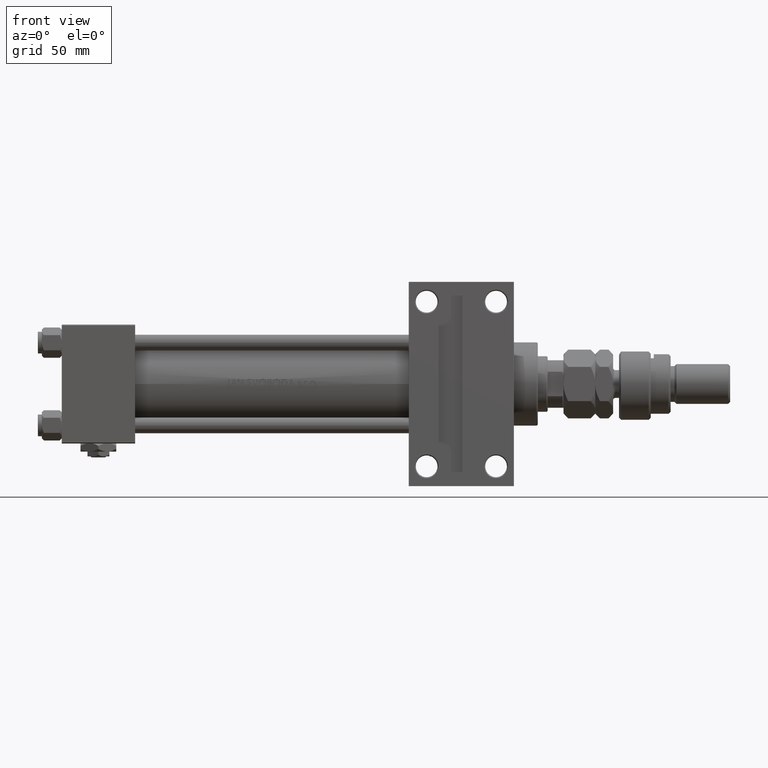
[diagram: clean part render]
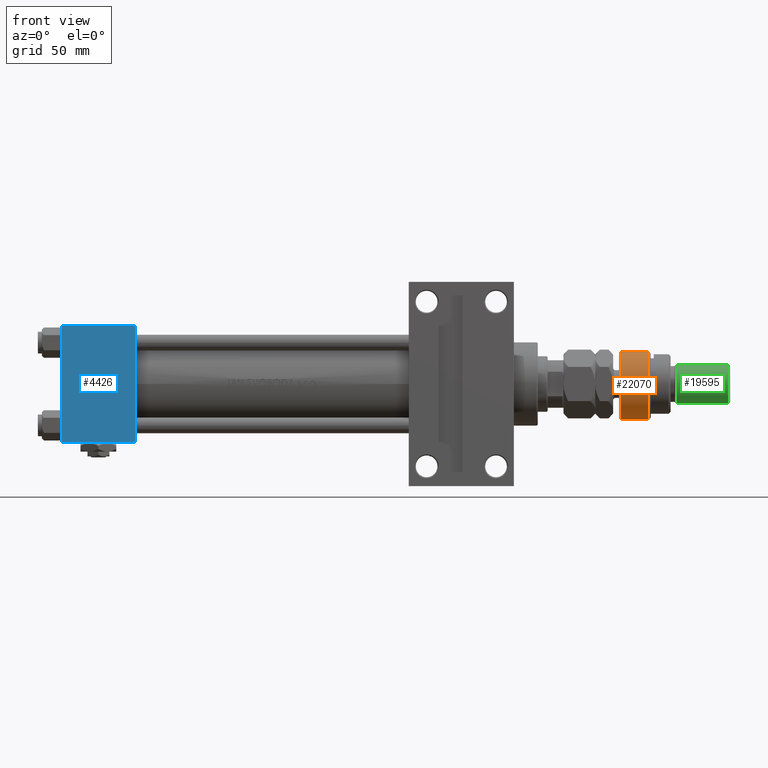
[diagram: same view with three faces highlighted in distinct colors, each labeled with its STEP entity id]
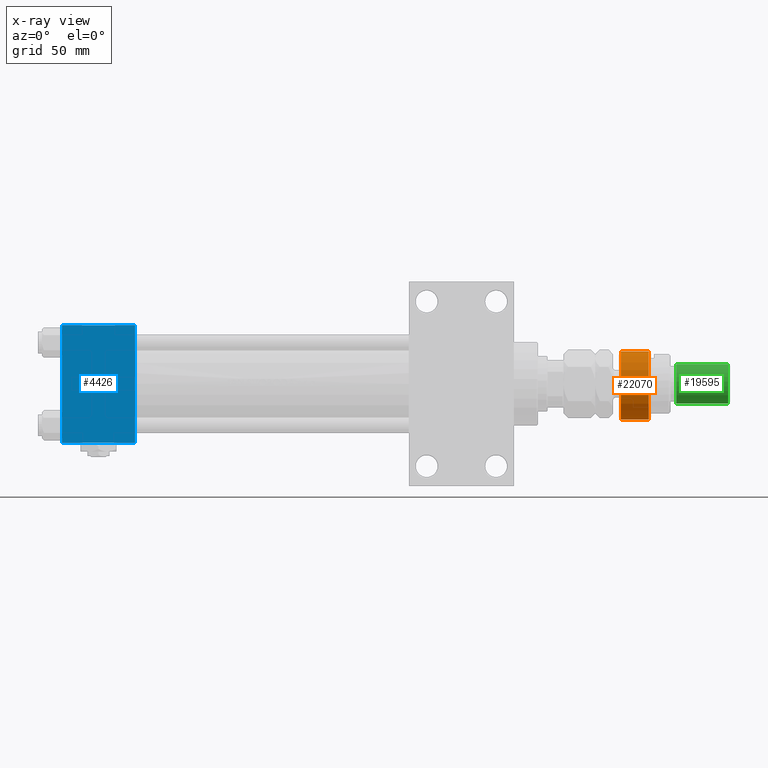
[diagram: x-ray of the same camera — body ghosted, the three highlighted faces saturated]
A machine part, front view with three faces highlighted in distinct colors.
The next image is the same camera in x-ray (body ghosted, the three faces saturated) — at least one of them is partly hidden behind the body in this view.
Their STEP definitions:

[orange] entity #22070 — the highlighted cylindrical surface (edge-blend (fillet) strip) has radius 18 mm, axis along (-1, -0, 0).
#254 = CARTESIAN_POINT ( 'NONE',  ( 0.000000000000000000, 0.000000000000000000, 1.000000000000011324 ) ) ;
#1689 = CARTESIAN_POINT ( 'NONE',  ( -16.36306817195357155, -7.500000000000000000, 14.99999999999999645 ) ) ;
#1696 = VERTEX_POINT ( 'NONE', #31382 ) ;
#2452 = FACE_OUTER_BOUND ( 'NONE', #17109, .T. ) ;
#4323 = CARTESIAN_POINT ( 'NONE',  ( 0.000000000000000000, 0.000000000000000000, 16.00000000000000000 ) ) ;
#5953 = CIRCLE ( 'NONE', #36282, 18.00000000000000000 ) ;
#7665 = ORIENTED_EDGE ( 'NONE', *, *, #20327, .T. ) ;
#10185 = CIRCLE ( 'NONE', #37015, 18.00000000000000000 ) ;
#10712 = CARTESIAN_POINT ( 'NONE',  ( -16.36306817195357155, -7.500000000000000000, 1.000000000000011324 ) ) ;
#11830 = DIRECTION ( 'NONE',  ( 1.000000000000000000, 0.000000000000000000, 0.000000000000000000 ) ) ;
#12352 = CARTESIAN_POINT ( 'NONE',  ( 0.000000000000000000, 0.000000000000000000, 1.000000000000011324 ) ) ;
#12477 = CARTESIAN_POINT ( 'NONE',  ( -16.36306817195357155, -7.500000000000000000, 17.50000000000000000 ) ) ;
#16518 = DIRECTION ( 'NONE',  ( -0.000000000000000000, -0.000000000000000000, -1.000000000000000000 ) ) ;
#16528 = DIRECTION ( 'NONE',  ( -0.000000000000000000, -0.000000000000000000, -1.000000000000000000 ) ) ;
#16806 = DIRECTION ( 'NONE',  ( 1.000000000000000000, 0.000000000000000000, 0.000000000000000000 ) ) ;
#17109 = EDGE_LOOP ( 'NONE', ( #33769, #30258, #7665, #38404, #20981 ) ) ;
#17279 = DIRECTION ( 'NONE',  ( 1.000000000000000000, 0.000000000000000000, 0.000000000000000000 ) ) ;
#17397 = EDGE_CURVE ( 'NONE', #26418, #24663, #5953, .T. ) ;
#18216 = AXIS2_PLACEMENT_3D ( 'NONE', #254, #21147, #16806 ) ;
#20327 = EDGE_CURVE ( 'NONE', #37587, #31015, #34171, .T. ) ;
#20853 = LINE ( 'NONE', #33860, #42413 ) ;
#20981 = ORIENTED_EDGE ( 'NONE', *, *, #17397, .T. ) ;
#21147 = DIRECTION ( 'NONE',  ( -0.000000000000000000, -0.000000000000000000, 1.000000000000000000 ) ) ;
#22070 = ADVANCED_FACE ( 'NONE', ( #2452 ), #35562, .T. ) ;
#22737 = AXIS2_PLACEMENT_3D ( 'NONE', #4323, #16528, #33079 ) ;
#22949 = CARTESIAN_POINT ( 'NONE',  ( -16.36306817195357155, 7.500000000000000000, 1.000000000000011324 ) ) ;
#24663 = VERTEX_POINT ( 'NONE', #22949 ) ;
#25713 = CARTESIAN_POINT ( 'NONE',  ( 0.000000000000000000, 0.000000000000000000, 14.99999999999999645 ) ) ;
#26418 = VERTEX_POINT ( 'NONE', #51416 ) ;
#29035 = DIRECTION ( 'NONE',  ( -0.000000000000000000, -0.000000000000000000, -1.000000000000000000 ) ) ;
#30258 = ORIENTED_EDGE ( 'NONE', *, *, #35795, .T. ) ;
#31015 = VERTEX_POINT ( 'NONE', #10712 ) ;
#31382 = CARTESIAN_POINT ( 'NONE',  ( -16.36306817195357155, 7.500000000000000000, 14.99999999999999645 ) ) ;
#33079 = DIRECTION ( 'NONE',  ( -1.000000000000000000, 0.000000000000000000, 0.000000000000000000 ) ) ;
#33769 = ORIENTED_EDGE ( 'NONE', *, *, #43903, .F. ) ;
#33860 = CARTESIAN_POINT ( 'NONE',  ( -16.36306817195357155, 7.500000000000000000, 17.50000000000000000 ) ) ;
#34171 = LINE ( 'NONE', #12477, #45241 ) ;
#35562 = CYLINDRICAL_SURFACE ( 'NONE', #22737, 18.00000000000000000 ) ;
#35795 = EDGE_CURVE ( 'NONE', #1696, #37587, #10185, .T. ) ;
#36282 = AXIS2_PLACEMENT_3D ( 'NONE', #12352, #40854, #11830 ) ;
#37015 = AXIS2_PLACEMENT_3D ( 'NONE', #25713, #37910, #17279 ) ;
#37587 = VERTEX_POINT ( 'NONE', #1689 ) ;
#37910 = DIRECTION ( 'NONE',  ( 0.000000000000000000, 0.000000000000000000, -1.000000000000000000 ) ) ;
#38404 = ORIENTED_EDGE ( 'NONE', *, *, #42520, .T. ) ;
#40854 = DIRECTION ( 'NONE',  ( -0.000000000000000000, -0.000000000000000000, 1.000000000000000000 ) ) ;
#41600 = CIRCLE ( 'NONE', #18216, 18.00000000000000000 ) ;
#42413 = VECTOR ( 'NONE', #16518, 1000.000000000000000 ) ;
#42520 = EDGE_CURVE ( 'NONE', #31015, #26418, #41600, .T. ) ;
#43903 = EDGE_CURVE ( 'NONE', #1696, #24663, #20853, .T. ) ;
#45241 = VECTOR ( 'NONE', #29035, 1000.000000000000000 ) ;
#51416 = CARTESIAN_POINT ( 'NONE',  ( 18.00000000000000000, 0.000000000000000000, 1.000000000000011324 ) ) ;

[blue] entity #4426 — the highlighted planar face has unit normal (0, -1, -0).
#1129 = DIRECTION ( 'NONE',  ( 0.000000000000000000, 1.000000000000000000, 1.156482317317871725E-16 ) ) ;
#2033 = LINE ( 'NONE', #27007, #27421 ) ;
#2237 = EDGE_LOOP ( 'NONE', ( #19453, #41298, #45672, #17836 ) ) ;
#4426 = ADVANCED_FACE ( 'NONE', ( #34773 ), #51285, .T. ) ;
#5146 = EDGE_CURVE ( 'NONE', #33947, #13072, #35088, .T. ) ;
#6512 = VERTEX_POINT ( 'NONE', #33091 ) ;
#7062 = CARTESIAN_POINT ( 'NONE',  ( 0.000000000000000000, -29.50000000000000000, -30.00000000000000711 ) ) ;
#7547 = EDGE_CURVE ( 'NONE', #36206, #13072, #2033, .T. ) ;
#9946 = EDGE_CURVE ( 'NONE', #33947, #6512, #15341, .T. ) ;
#11888 = VECTOR ( 'NONE', #28766, 1000.000000000000000 ) ;
#12225 = CARTESIAN_POINT ( 'NONE',  ( 37.00000000000000000, 29.99999999999999289, -30.00000000000000000 ) ) ;
#13072 = VERTEX_POINT ( 'NONE', #7062 ) ;
#14460 = DIRECTION ( 'NONE',  ( 0.000000000000000000, -1.000000000000000000, -1.156482317317871725E-16 ) ) ;
#15341 = LINE ( 'NONE', #27294, #28339 ) ;
#17836 = ORIENTED_EDGE ( 'NONE', *, *, #7547, .T. ) ;
#19453 = ORIENTED_EDGE ( 'NONE', *, *, #5146, .F. ) ;
#20363 = LINE ( 'NONE', #12225, #11888 ) ;
#26105 = CARTESIAN_POINT ( 'NONE',  ( 37.00000000000000000, 29.99999999999999289, -30.00000000000000000 ) ) ;
#27007 = CARTESIAN_POINT ( 'NONE',  ( 0.000000000000000000, -29.50000000000001066, -30.00000000000000711 ) ) ;
#27294 = CARTESIAN_POINT ( 'NONE',  ( 37.00000000000000000, 29.49999999999997868, -30.00000000000000000 ) ) ;
#27421 = VECTOR ( 'NONE', #43801, 1000.000000000000000 ) ;
#28339 = VECTOR ( 'NONE', #39502, 1000.000000000000000 ) ;
#28766 = DIRECTION ( 'NONE',  ( 0.000000000000000000, -1.000000000000000000, -1.156482317317871725E-16 ) ) ;
#28946 = AXIS2_PLACEMENT_3D ( 'NONE', #26105, #50481, #1129 ) ;
#33091 = CARTESIAN_POINT ( 'NONE',  ( 37.00000000000000000, 29.49999999999997868, -30.00000000000000000 ) ) ;
#33947 = VERTEX_POINT ( 'NONE', #45065 ) ;
#34773 = FACE_OUTER_BOUND ( 'NONE', #2237, .T. ) ;
#35088 = LINE ( 'NONE', #51868, #50635 ) ;
#35471 = EDGE_CURVE ( 'NONE', #6512, #36206, #20363, .T. ) ;
#36206 = VERTEX_POINT ( 'NONE', #36796 ) ;
#36796 = CARTESIAN_POINT ( 'NONE',  ( 37.00000000000000000, -29.50000000000000000, -30.00000000000000711 ) ) ;
#39502 = DIRECTION ( 'NONE',  ( 1.000000000000000000, 0.000000000000000000, 0.000000000000000000 ) ) ;
#41298 = ORIENTED_EDGE ( 'NONE', *, *, #9946, .T. ) ;
#43801 = DIRECTION ( 'NONE',  ( -1.000000000000000000, 0.000000000000000000, 0.000000000000000000 ) ) ;
#45065 = CARTESIAN_POINT ( 'NONE',  ( 0.000000000000000000, 29.49999999999997868, -30.00000000000000000 ) ) ;
#45672 = ORIENTED_EDGE ( 'NONE', *, *, #35471, .T. ) ;
#50481 = DIRECTION ( 'NONE',  ( 0.000000000000000000, 1.156482317317871725E-16, -1.000000000000000000 ) ) ;
#50635 = VECTOR ( 'NONE', #14460, 1000.000000000000000 ) ;
#51285 = PLANE ( 'NONE',  #28946 ) ;
#51868 = CARTESIAN_POINT ( 'NONE',  ( 0.000000000000000000, 29.99999999999999289, -30.00000000000000000 ) ) ;

[green] entity #19595 — the highlighted cylindrical surface (edge-blend (fillet) strip) has radius 10 mm, axis along (-1, -0, 0).
#526 = CARTESIAN_POINT ( 'NONE',  ( -10.00000000000000000, 0.000000000000000000, 56.00000000000000711 ) ) ;
#590 = EDGE_LOOP ( 'NONE', ( #20425, #17063, #5705, #39958 ) ) ;
#802 = CARTESIAN_POINT ( 'NONE',  ( 10.00000000000000000, 1.224646799147353256E-15, 56.00000000000000711 ) ) ;
#1068 = LINE ( 'NONE', #802, #23165 ) ;
#5705 = ORIENTED_EDGE ( 'NONE', *, *, #20302, .T. ) ;
#6958 = DIRECTION ( 'NONE',  ( 1.000000000000000000, 0.000000000000000000, 0.000000000000000000 ) ) ;
#7909 = EDGE_CURVE ( 'NONE', #53582, #15071, #24791, .T. ) ;
#9072 = CARTESIAN_POINT ( 'NONE',  ( 0.000000000000000000, 0.000000000000000000, 56.00000000000000711 ) ) ;
#9216 = LINE ( 'NONE', #526, #41726 ) ;
#11029 = DIRECTION ( 'NONE',  ( -0.000000000000000000, -0.000000000000000000, 1.000000000000000000 ) ) ;
#13277 = DIRECTION ( 'NONE',  ( -0.000000000000000000, -0.000000000000000000, -1.000000000000000000 ) ) ;
#13398 = DIRECTION ( 'NONE',  ( -0.000000000000000000, -0.000000000000000000, -1.000000000000000000 ) ) ;
#13905 = CARTESIAN_POINT ( 'NONE',  ( 0.000000000000000000, 0.000000000000000000, 54.99999999999998579 ) ) ;
#15071 = VERTEX_POINT ( 'NONE', #31167 ) ;
#17063 = ORIENTED_EDGE ( 'NONE', *, *, #7909, .T. ) ;
#17461 = CARTESIAN_POINT ( 'NONE',  ( -10.00000000000000000, 0.000000000000000000, 29.00000000000000711 ) ) ;
#17607 = DIRECTION ( 'NONE',  ( -0.000000000000000000, -0.000000000000000000, -1.000000000000000000 ) ) ;
#18587 = CIRCLE ( 'NONE', #46311, 10.00000000000000000 ) ;
#19515 = VERTEX_POINT ( 'NONE', #17461 ) ;
#19595 = ADVANCED_FACE ( 'NONE', ( #41623 ), #33751, .T. ) ;
#20302 = EDGE_CURVE ( 'NONE', #15071, #19515, #9216, .T. ) ;
#20425 = ORIENTED_EDGE ( 'NONE', *, *, #35586, .F. ) ;
#23008 = AXIS2_PLACEMENT_3D ( 'NONE', #9072, #13398, #34023 ) ;
#23165 = VECTOR ( 'NONE', #13277, 1000.000000000000000 ) ;
#23226 = CARTESIAN_POINT ( 'NONE',  ( 10.00000000000000000, 1.224646799147353256E-15, 54.99999999999998579 ) ) ;
#24791 = CIRCLE ( 'NONE', #30853, 10.00000000000000000 ) ;
#26534 = EDGE_CURVE ( 'NONE', #19515, #46868, #18587, .T. ) ;
#28371 = CARTESIAN_POINT ( 'NONE',  ( 0.000000000000000000, 0.000000000000000000, 29.00000000000000711 ) ) ;
#30450 = DIRECTION ( 'NONE',  ( 0.000000000000000000, 0.000000000000000000, -1.000000000000000000 ) ) ;
#30853 = AXIS2_PLACEMENT_3D ( 'NONE', #13905, #30450, #47009 ) ;
#31167 = CARTESIAN_POINT ( 'NONE',  ( -10.00000000000000000, 0.000000000000000000, 54.99999999999998579 ) ) ;
#33751 = CYLINDRICAL_SURFACE ( 'NONE', #23008, 10.00000000000000000 ) ;
#34023 = DIRECTION ( 'NONE',  ( -1.000000000000000000, 0.000000000000000000, 0.000000000000000000 ) ) ;
#35586 = EDGE_CURVE ( 'NONE', #53582, #46868, #1068, .T. ) ;
#35999 = CARTESIAN_POINT ( 'NONE',  ( 10.00000000000000000, 1.224646799147353256E-15, 29.00000000000000711 ) ) ;
#39958 = ORIENTED_EDGE ( 'NONE', *, *, #26534, .T. ) ;
#41623 = FACE_OUTER_BOUND ( 'NONE', #590, .T. ) ;
#41726 = VECTOR ( 'NONE', #17607, 1000.000000000000000 ) ;
#46311 = AXIS2_PLACEMENT_3D ( 'NONE', #28371, #11029, #6958 ) ;
#46868 = VERTEX_POINT ( 'NONE', #35999 ) ;
#47009 = DIRECTION ( 'NONE',  ( 1.000000000000000000, 0.000000000000000000, 0.000000000000000000 ) ) ;
#53582 = VERTEX_POINT ( 'NONE', #23226 ) ;